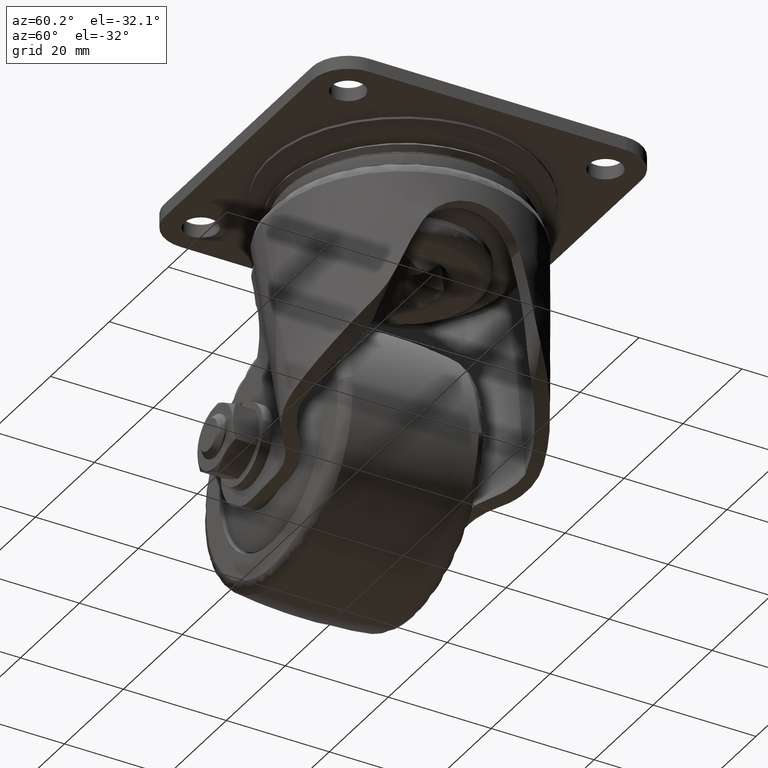
[diagram: clean part render]
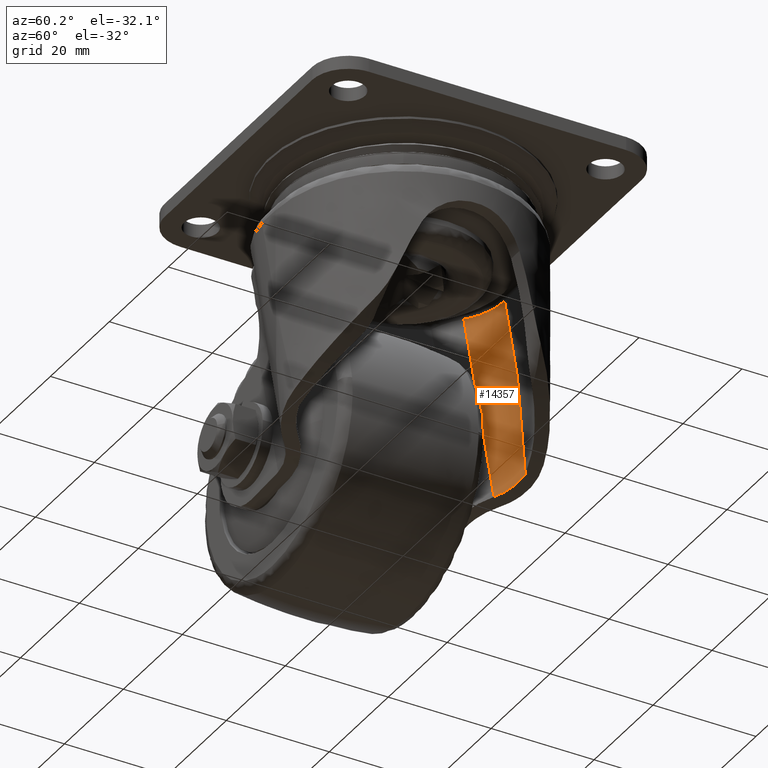
[diagram: same view with one face highlighted and labeled with its STEP entity id]
A machine part, auxiliary view. The second image highlights one B-rep face of the part: STEP entity #14357.
In plain terms, the highlighted face is a freeform B-spline surface patch.
Its self-contained STEP definition (entity closure, byte-faithful):
#11970=CARTESIAN_POINT('',(-4.361268890632290,22.199999999999999,-13.724304000000020));
#11971=VERTEX_POINT('',#11970);
#12049=CARTESIAN_POINT('',(-12.559929658864620,18.992759619362751,-13.891486645783759));
#12050=VERTEX_POINT('',#12049);
#12139=CARTESIAN_POINT('',(-4.361268890632283,22.199999999999999,-13.724304000000020));
#12140=CARTESIAN_POINT('',(-9.120193740972754,22.200000000000003,-13.821345415672235));
#12141=CARTESIAN_POINT('',(-12.559929658864620,18.992759619362751,-13.891486645783759));
#12149=(BOUNDED_CURVE()B_SPLINE_CURVE(2,(#12139,#12140,#12141),.UNSPECIFIED.,.F.,.U.)CURVE()GEOMETRIC_REPRESENTATION_ITEM()QUASI_UNIFORM_CURVE()RATIONAL_B_SPLINE_CURVE((1.0,0.928115525030721,1.0))REPRESENTATION_ITEM(''));
#12150=EDGE_CURVE('',#11971,#12050,#12149,.T.);
#14298=CARTESIAN_POINT('',(-2.178687019415437,18.922667559159908,-55.828786901916381));
#14299=CARTESIAN_POINT('',(-12.891738353952450,18.922667559159908,-12.861074972143649));
#14300=CARTESIAN_POINT('',(1.265472290414962,22.376202760728024,-54.970061737522180));
#14301=CARTESIAN_POINT('',(-9.447579044122053,22.376202760728013,-12.002349807749455));
#14302=CARTESIAN_POINT('',(6.067467239180234,22.191993551580644,-53.772790203064147));
#14303=CARTESIAN_POINT('',(-4.645584095356785,22.191993551580644,-10.805078273291423));
#14311=(BOUNDED_SURFACE()B_SPLINE_SURFACE(1,2,((#14298,#14300,#14302),(#14299,#14301,#14303)),.UNSPECIFIED.,.F.,.F.,.U.)B_SPLINE_SURFACE_WITH_KNOTS((2,2),(3,3),(0.0,44.283108939824437),(0.0,9.488504683524152),.UNSPECIFIED.)GEOMETRIC_REPRESENTATION_ITEM()RATIONAL_B_SPLINE_SURFACE(((1.0,0.918246199524242,0.997661675309114),(1.0,0.918246199524242,0.997661675309114)))REPRESENTATION_ITEM('')SURFACE());
#14312=CARTESIAN_POINT('',(-1.019733E-013,22.199999999999999,-31.216402141715850));
#14313=VERTEX_POINT('',#14312);
#14314=CARTESIAN_POINT('',(-1.019733E-013,22.199999999999999,-31.216402141715850));
#14315=CARTESIAN_POINT('',(-4.361268890632290,22.199999999999999,-13.724304000000020));
#14316=QUASI_UNIFORM_CURVE('',1,(#14314,#14315),.UNSPECIFIED.,.F.,.U.);
#14317=EDGE_CURVE('',#14313,#11971,#14316,.T.);
#14318=ORIENTED_EDGE('',*,*,#14317,.T.);
#14319=ORIENTED_EDGE('',*,*,#12150,.T.);
#14320=CARTESIAN_POINT('',(-2.363093171500450,18.992759619362751,-54.788773432004099));
#14321=VERTEX_POINT('',#14320);
#14322=CARTESIAN_POINT('',(-12.559929658864620,18.992759619362751,-13.891486645783759));
#14323=CARTESIAN_POINT('',(-2.363093171500450,18.992759619362751,-54.788773432004099));
#14324=QUASI_UNIFORM_CURVE('',1,(#14322,#14323),.UNSPECIFIED.,.F.,.U.);
#14325=EDGE_CURVE('',#12050,#14321,#14324,.T.);
#14326=ORIENTED_EDGE('',*,*,#14325,.T.);
#14327=CARTESIAN_POINT('',(3.030207763669890,21.992222282184350,-52.392832106893998));
#14328=VERTEX_POINT('',#14327);
#14329=CARTESIAN_POINT('',(-2.363093171500450,18.992759619362751,-54.788773432004099));
#14330=CARTESIAN_POINT('',(-1.978302232287003,19.381633796997161,-54.650828714705142));
#14331=CARTESIAN_POINT('',(-1.573659438379042,19.735607155697011,-54.499120800353040));
#14332=CARTESIAN_POINT('',(-0.728345244207911,20.376934541951481,-54.164814974848291));
#14333=CARTESIAN_POINT('',(-0.287659816489162,20.664275775048811,-53.982228733948688));
#14334=CARTESIAN_POINT('',(0.284891205083294,20.981317063784470,-53.731751778072329));
#14335=CARTESIAN_POINT('',(0.400491406045306,21.042609130953561,-53.680540268348672));
#14336=CARTESIAN_POINT('',(0.633872080726804,21.160910104279591,-53.575794148812022));
#14337=CARTESIAN_POINT('',(0.751355413772222,21.217760662768178,-53.522390783008689));
#14338=CARTESIAN_POINT('',(1.104602336331134,21.380766457678359,-53.359726446205450));
#14339=CARTESIAN_POINT('',(1.341773466312233,21.479698096959570,-53.247738042900679));
#14340=CARTESIAN_POINT('',(2.057874208995937,21.747972723089489,-52.900755176326861));
#14341=CARTESIAN_POINT('',(2.541358777010438,21.888923251965799,-52.654768406527253));
#14342=CARTESIAN_POINT('',(3.030207763669890,21.992222282184350,-52.392832106893998));
#14343=B_SPLINE_CURVE_WITH_KNOTS('',3,(#14329,#14330,#14331,#14332,#14333,#14334,#14335,#14336,#14337,#14338,#14339,#14340,#14341,#14342),.UNSPECIFIED.,.F.,.U.,(4,2,2,2,2,2,4),(0.0,0.249999999999999,0.499999999999997,0.562499999999997,0.624999999999997,0.749999999999998,1.0),.UNSPECIFIED.);
#14344=EDGE_CURVE('',#14321,#14328,#14343,.T.);
#14345=ORIENTED_EDGE('',*,*,#14344,.T.);
#14346=CARTESIAN_POINT('',(3.030207763669890,21.992222282184350,-52.392832106893998));
#14347=CARTESIAN_POINT('',(2.524296411217797,22.061929494500550,-48.863897473627667));
#14348=CARTESIAN_POINT('',(2.019063296337931,22.113785683377891,-45.334689900739349));
#14349=CARTESIAN_POINT('',(1.009226993709465,22.182822063933969,-38.275842950133423));
#14350=CARTESIAN_POINT('',(0.504602009028752,22.199999999999999,-34.746039611187882));
#14351=CARTESIAN_POINT('',(-4.769393E-014,22.199999999999999,-31.216402141715950));
#14352=B_SPLINE_CURVE_WITH_KNOTS('',3,(#14346,#14347,#14348,#14349,#14350,#14351),.UNSPECIFIED.,.F.,.U.,(4,2,4),(0.0,0.500000000000000,1.0),.UNSPECIFIED.);
#14353=EDGE_CURVE('',#14328,#14313,#14352,.T.);
#14354=ORIENTED_EDGE('',*,*,#14353,.T.);
#14355=EDGE_LOOP('',(#14318,#14319,#14326,#14345,#14354));
#14356=FACE_OUTER_BOUND('',#14355,.T.);
#14357=ADVANCED_FACE('',(#14356),#14311,.F.);